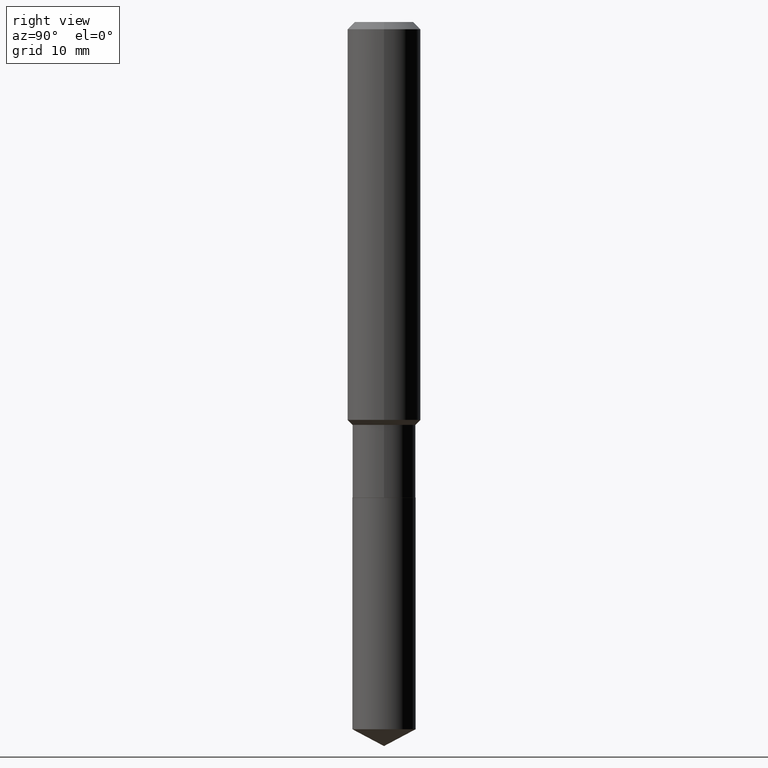
[diagram: clean part render]
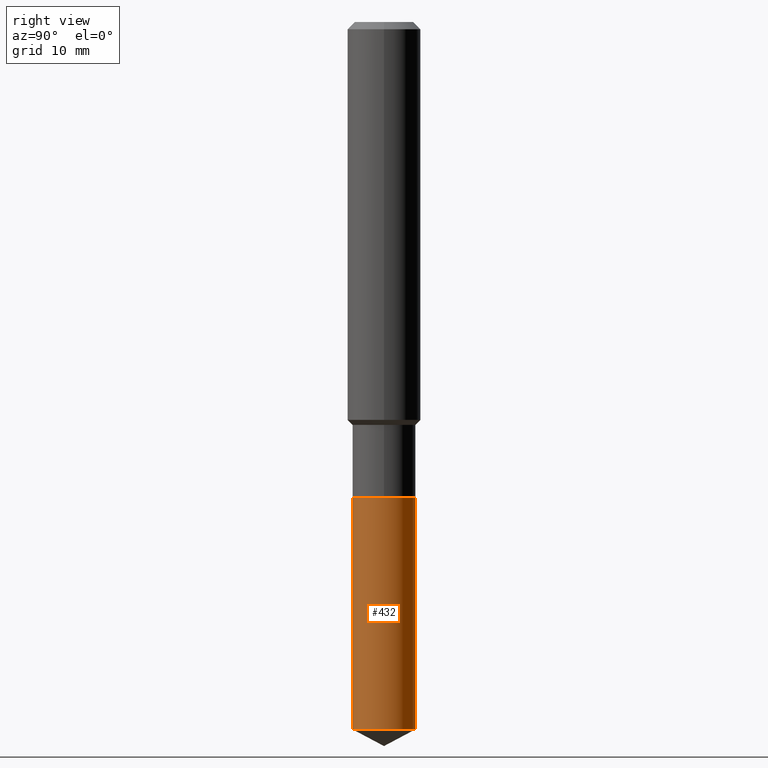
[diagram: same view with one face highlighted and labeled with its STEP entity id]
A machine part, right view. The second image highlights one B-rep face of the part: STEP entity #432.
In plain terms, the highlighted cylindrical surface (edge-blend (fillet) strip) has radius 3.4506 mm, axis along (-0, 0, 1).
Its self-contained STEP definition (entity closure, byte-faithful):
#21 = CARTESIAN_POINT ( 'NONE',  ( 7.429094882501991014E-29, -1.060723419885419791E-14, -3.037967273708788607 ) ) ;
#34 = CIRCLE ( 'NONE', #254, 0.1358499999999999985 ) ;
#46 = CARTESIAN_POINT ( 'NONE',  ( -9.486354797636292620E-16, -0.1358500000000071317, -2.043299999999999450 ) ) ;
#57 = VECTOR ( 'NONE', #486, 39.37007874015748143 ) ;
#60 = CARTESIAN_POINT ( 'NONE',  ( -9.486354797636292620E-16, -0.1358500000000071317, -2.043299999999999450 ) ) ;
#64 = DIRECTION ( 'NONE',  ( -2.445308632458337588E-29, 3.491710716736444138E-15, 1.000000000000000000 ) ) ;
#101 = EDGE_LOOP ( 'NONE', ( #158, #196, #145, #455 ) ) ;
#117 = VERTEX_POINT ( 'NONE', #374 ) ;
#145 = ORIENTED_EDGE ( 'NONE', *, *, #167, .F. ) ;
#151 = EDGE_CURVE ( 'NONE', #263, #461, #367, .T. ) ;
#156 = CYLINDRICAL_SURFACE ( 'NONE', #329, 0.1358499999999999985 ) ;
#158 = ORIENTED_EDGE ( 'NONE', *, *, #217, .T. ) ;
#164 = CARTESIAN_POINT ( 'NONE',  ( -9.486354797636052018E-16, -0.1358500000000106289, -3.037967273708788163 ) ) ;
#167 = EDGE_CURVE ( 'NONE', #461, #487, #34, .T. ) ;
#196 = ORIENTED_EDGE ( 'NONE', *, *, #412, .T. ) ;
#217 = EDGE_CURVE ( 'NONE', #263, #117, #408, .T. ) ;
#221 = DIRECTION ( 'NONE',  ( -2.445308632458337308E-29, 3.491710716736444138E-15, 1.000000000000000000 ) ) ;
#225 = DIRECTION ( 'NONE',  ( -6.982962677686266711E-15, -1.000000000000000000, 4.021859394426593130E-15 ) ) ;
#250 = DIRECTION ( 'NONE',  ( -6.982962677686265133E-15, -1.000000000000000000, 4.021859394426592341E-15 ) ) ;
#254 = AXIS2_PLACEMENT_3D ( 'NONE', #442, #336, #295 ) ;
#260 = LINE ( 'NONE', #480, #57 ) ;
#263 = VERTEX_POINT ( 'NONE', #164 ) ;
#285 = VECTOR ( 'NONE', #221, 39.37007874015748143 ) ;
#295 = DIRECTION ( 'NONE',  ( -6.982962677686266711E-15, -1.000000000000000000, 4.021859394426593130E-15 ) ) ;
#311 = CARTESIAN_POINT ( 'NONE',  ( 4.996826411678089735E-29, -7.134143819658199685E-15, -2.043299999999999894 ) ) ;
#329 = AXIS2_PLACEMENT_3D ( 'NONE', #311, #64, #225 ) ;
#336 = DIRECTION ( 'NONE',  ( -2.445308632458337588E-29, 3.491710716736444138E-15, 1.000000000000000000 ) ) ;
#359 = CARTESIAN_POINT ( 'NONE',  ( 9.652723065301704422E-16, 0.1358499999999928654, -2.043300000000000782 ) ) ;
#367 = LINE ( 'NONE', #60, #285 ) ;
#374 = CARTESIAN_POINT ( 'NONE',  ( 9.652723065301704422E-16, 0.1358499999999894237, -3.037967273708789051 ) ) ;
#380 = FACE_OUTER_BOUND ( 'NONE', #101, .T. ) ;
#400 = AXIS2_PLACEMENT_3D ( 'NONE', #21, #478, #250 ) ;
#408 = CIRCLE ( 'NONE', #400, 0.1358500000000000263 ) ;
#412 = EDGE_CURVE ( 'NONE', #117, #487, #260, .T. ) ;
#432 = ADVANCED_FACE ( 'NONE', ( #380 ), #156, .T. ) ;
#442 = CARTESIAN_POINT ( 'NONE',  ( 4.996826411678089735E-29, -7.134143819658199685E-15, -2.043299999999999894 ) ) ;
#455 = ORIENTED_EDGE ( 'NONE', *, *, #151, .F. ) ;
#461 = VERTEX_POINT ( 'NONE', #46 ) ;
#478 = DIRECTION ( 'NONE',  ( -2.445308632458337588E-29, 3.491710716736444138E-15, 1.000000000000000000 ) ) ;
#480 = CARTESIAN_POINT ( 'NONE',  ( 9.652723065301459875E-16, 0.1358499999999928654, -2.043300000000000782 ) ) ;
#486 = DIRECTION ( 'NONE',  ( -2.445308632458337308E-29, 3.491710716736444138E-15, 1.000000000000000000 ) ) ;
#487 = VERTEX_POINT ( 'NONE', #359 ) ;